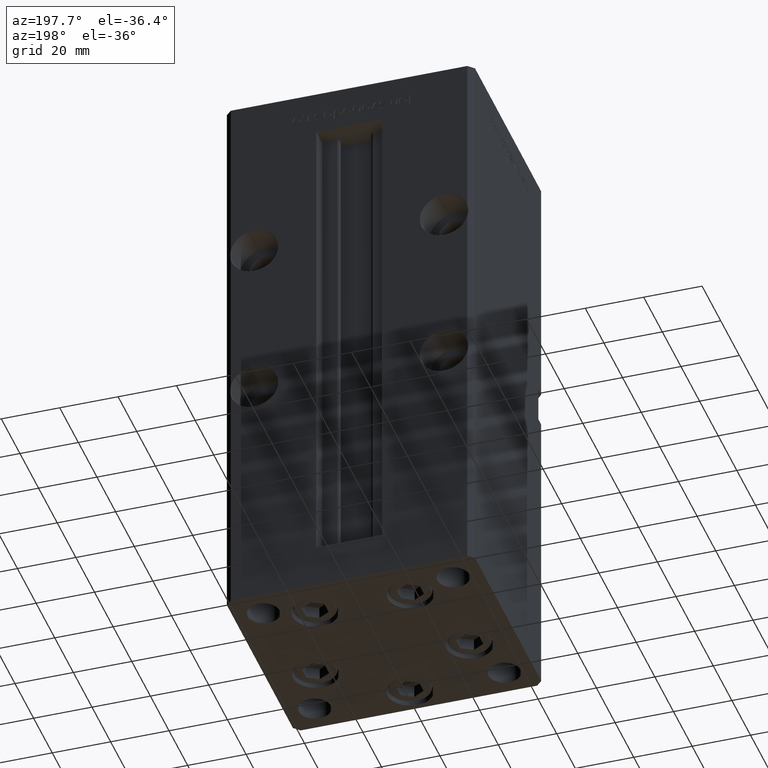
[diagram: clean part render]
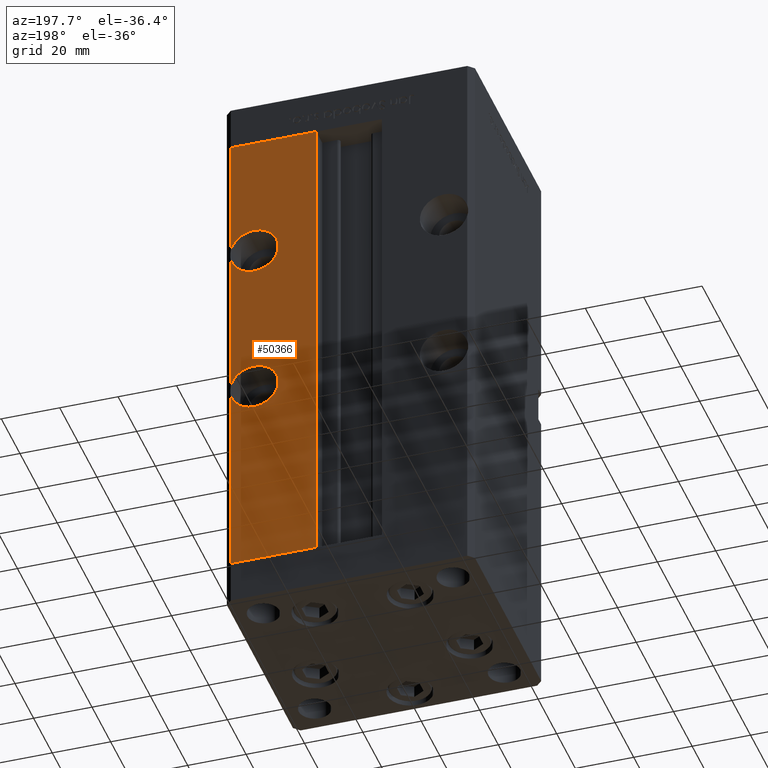
[diagram: same view with one face highlighted and labeled with its STEP entity id]
A machine part, auxiliary view. The second image highlights one B-rep face of the part: STEP entity #50366.
In plain terms, the highlighted planar face has unit normal (0, -1, 0).
Its self-contained STEP definition (entity closure, byte-faithful):
#68 = DIRECTION ( 'NONE',  ( -0.000000000000000000, -0.000000000000000000, -1.000000000000000000 ) ) ;
#146 = CARTESIAN_POINT ( 'NONE',  ( 40.50000000000000711, 37.50000000000000000, 122.9844355629253556 ) ) ;
#424 = CARTESIAN_POINT ( 'NONE',  ( 32.50000000000000000, 37.50000000000000000, 78.25000000000002842 ) ) ;
#492 = EDGE_CURVE ( 'NONE', #6066, #37689, #36009, .T. ) ;
#1006 = ORIENTED_EDGE ( 'NONE', *, *, #45909, .T. ) ;
#1206 = AXIS2_PLACEMENT_3D ( 'NONE', #20088, #27600, #12278 ) ;
#1716 = CIRCLE ( 'NONE', #15455, 8.250000000000007105 ) ;
#1915 = DIRECTION ( 'NONE',  ( 0.000000000000000000, 1.000000000000000000, -0.000000000000000000 ) ) ;
#2028 = EDGE_CURVE ( 'NONE', #33073, #47016, #1716, .T. ) ;
#2384 = EDGE_LOOP ( 'NONE', ( #27722, #16819, #6814, #15240, #18536, #35925, #11317, #44827, #1006, #30676, #18482, #17749 ) ) ;
#2979 = DIRECTION ( 'NONE',  ( 0.000000000000000000, 1.000000000000000000, -0.000000000000000000 ) ) ;
#3067 = AXIS2_PLACEMENT_3D ( 'NONE', #47096, #1915, #21832 ) ;
#3756 = CARTESIAN_POINT ( 'NONE',  ( 40.50000000000000711, 37.50000000000000000, 168.5000000000000000 ) ) ;
#3815 = CARTESIAN_POINT ( 'NONE',  ( 32.50000000000000000, 37.50000000000000000, 61.75000000000004263 ) ) ;
#4638 = EDGE_CURVE ( 'NONE', #39485, #19015, #52459, .T. ) ;
#5524 = CIRCLE ( 'NONE', #48505, 8.250000000000007105 ) ;
#5832 = EDGE_CURVE ( 'NONE', #17366, #27367, #22758, .T. ) ;
#6066 = VERTEX_POINT ( 'NONE', #14120 ) ;
#6775 = DIRECTION ( 'NONE',  ( 0.000000000000000000, 0.000000000000000000, 1.000000000000000000 ) ) ;
#6814 = ORIENTED_EDGE ( 'NONE', *, *, #27935, .F. ) ;
#6829 = VECTOR ( 'NONE', #8470, 1000.000000000000000 ) ;
#7046 = DIRECTION ( 'NONE',  ( 0.000000000000000000, 1.000000000000000000, 0.000000000000000000 ) ) ;
#8470 = DIRECTION ( 'NONE',  ( -1.000000000000000000, 0.000000000000000000, 0.000000000000000000 ) ) ;
#9055 = PLANE ( 'NONE',  #32508 ) ;
#10327 = VERTEX_POINT ( 'NONE', #146 ) ;
#10501 = DIRECTION ( 'NONE',  ( 0.000000000000000000, 1.000000000000000000, -0.000000000000000000 ) ) ;
#11317 = ORIENTED_EDGE ( 'NONE', *, *, #47562, .T. ) ;
#12278 = DIRECTION ( 'NONE',  ( 0.000000000000000000, 0.000000000000000000, 1.000000000000000000 ) ) ;
#13305 = CARTESIAN_POINT ( 'NONE',  ( -11.24999999999999822, 37.50000000000000000, 0.000000000000000000 ) ) ;
#14120 = CARTESIAN_POINT ( 'NONE',  ( 40.50000000000000711, 37.50000000000000000, 67.98443556292544088 ) ) ;
#15232 = DIRECTION ( 'NONE',  ( 1.000000000000000000, 0.000000000000000000, 0.000000000000000000 ) ) ;
#15240 = ORIENTED_EDGE ( 'NONE', *, *, #492, .F. ) ;
#15455 = AXIS2_PLACEMENT_3D ( 'NONE', #48203, #7046, #40385 ) ;
#15458 = DIRECTION ( 'NONE',  ( -0.000000000000000000, -0.000000000000000000, -1.000000000000000000 ) ) ;
#16819 = ORIENTED_EDGE ( 'NONE', *, *, #4638, .F. ) ;
#17366 = VERTEX_POINT ( 'NONE', #49367 ) ;
#17544 = CIRCLE ( 'NONE', #1206, 8.250000000000007105 ) ;
#17749 = ORIENTED_EDGE ( 'NONE', *, *, #24495, .F. ) ;
#17784 = DIRECTION ( 'NONE',  ( 0.000000000000000000, 0.000000000000000000, -1.000000000000000000 ) ) ;
#18336 = VECTOR ( 'NONE', #40326, 1000.000000000000000 ) ;
#18482 = ORIENTED_EDGE ( 'NONE', *, *, #2028, .F. ) ;
#18536 = ORIENTED_EDGE ( 'NONE', *, *, #30273, .T. ) ;
#18713 = CARTESIAN_POINT ( 'NONE',  ( 40.50000000000000711, 37.50000000000000000, 168.5000000000000000 ) ) ;
#19015 = VERTEX_POINT ( 'NONE', #34395 ) ;
#19388 = CARTESIAN_POINT ( 'NONE',  ( 40.50000000000000711, 37.50000000000000000, 168.5000000000000000 ) ) ;
#19408 = DIRECTION ( 'NONE',  ( 0.000000000000000000, 0.000000000000000000, -1.000000000000000000 ) ) ;
#19516 = LINE ( 'NONE', #18713, #28911 ) ;
#20088 = CARTESIAN_POINT ( 'NONE',  ( 32.50000000000000000, 37.50000000000000000, 125.0000000000000284 ) ) ;
#21437 = VECTOR ( 'NONE', #68, 1000.000000000000000 ) ;
#21832 = DIRECTION ( 'NONE',  ( 0.000000000000000000, 0.000000000000000000, -1.000000000000000000 ) ) ;
#22282 = VECTOR ( 'NONE', #15232, 1000.000000000000000 ) ;
#22288 = AXIS2_PLACEMENT_3D ( 'NONE', #38460, #10501, #17784 ) ;
#22758 = LINE ( 'NONE', #43195, #22282 ) ;
#23948 = CARTESIAN_POINT ( 'NONE',  ( 32.50000000000000000, 37.50000000000000000, 70.00000000000002842 ) ) ;
#24085 = CARTESIAN_POINT ( 'NONE',  ( 40.50000000000000711, 37.50000000000000000, 127.0155644370746728 ) ) ;
#24495 = EDGE_CURVE ( 'NONE', #10327, #33073, #5524, .T. ) ;
#26456 = VERTEX_POINT ( 'NONE', #39920 ) ;
#27367 = VERTEX_POINT ( 'NONE', #3756 ) ;
#27600 = DIRECTION ( 'NONE',  ( 0.000000000000000000, 1.000000000000000000, 0.000000000000000000 ) ) ;
#27722 = ORIENTED_EDGE ( 'NONE', *, *, #53043, .T. ) ;
#27935 = EDGE_CURVE ( 'NONE', #37689, #39485, #50313, .T. ) ;
#28911 = VECTOR ( 'NONE', #15458, 1000.000000000000000 ) ;
#29632 = LINE ( 'NONE', #50091, #21437 ) ;
#30273 = EDGE_CURVE ( 'NONE', #6066, #26456, #51905, .T. ) ;
#30676 = ORIENTED_EDGE ( 'NONE', *, *, #32306, .F. ) ;
#31339 = VERTEX_POINT ( 'NONE', #46719 ) ;
#32306 = EDGE_CURVE ( 'NONE', #47016, #49763, #17544, .T. ) ;
#32401 = VECTOR ( 'NONE', #51249, 1000.000000000000000 ) ;
#32508 = AXIS2_PLACEMENT_3D ( 'NONE', #45625, #42377, #34037 ) ;
#32679 = AXIS2_PLACEMENT_3D ( 'NONE', #23948, #2979, #19408 ) ;
#33073 = VERTEX_POINT ( 'NONE', #49727 ) ;
#34037 = DIRECTION ( 'NONE',  ( 0.000000000000000000, -0.000000000000000000, -1.000000000000000000 ) ) ;
#34395 = CARTESIAN_POINT ( 'NONE',  ( 40.50000000000000711, 37.50000000000000000, 72.01556443707463018 ) ) ;
#35925 = ORIENTED_EDGE ( 'NONE', *, *, #52801, .T. ) ;
#36009 = CIRCLE ( 'NONE', #22288, 8.249999999999992895 ) ;
#36960 = LINE ( 'NONE', #13305, #6829 ) ;
#37689 = VERTEX_POINT ( 'NONE', #3815 ) ;
#38460 = CARTESIAN_POINT ( 'NONE',  ( 32.50000000000000000, 37.50000000000000000, 70.00000000000002842 ) ) ;
#39485 = VERTEX_POINT ( 'NONE', #424 ) ;
#39920 = CARTESIAN_POINT ( 'NONE',  ( 40.50000000000000711, 37.50000000000000000, 0.000000000000000000 ) ) ;
#40326 = DIRECTION ( 'NONE',  ( -0.000000000000000000, -0.000000000000000000, -1.000000000000000000 ) ) ;
#40385 = DIRECTION ( 'NONE',  ( 0.000000000000000000, 0.000000000000000000, 1.000000000000000000 ) ) ;
#42377 = DIRECTION ( 'NONE',  ( 0.000000000000000000, -1.000000000000000000, 0.000000000000000000 ) ) ;
#43195 = CARTESIAN_POINT ( 'NONE',  ( -11.24999999999999822, 37.50000000000000000, 168.5000000000000000 ) ) ;
#44827 = ORIENTED_EDGE ( 'NONE', *, *, #5832, .T. ) ;
#45625 = CARTESIAN_POINT ( 'NONE',  ( -11.24999999999999822, 37.50000000000000000, 168.5000000000000000 ) ) ;
#45909 = EDGE_CURVE ( 'NONE', #27367, #49763, #19516, .T. ) ;
#46431 = FACE_OUTER_BOUND ( 'NONE', #2384, .T. ) ;
#46719 = CARTESIAN_POINT ( 'NONE',  ( 11.24999999999999822, 37.50000000000000000, 0.000000000000000000 ) ) ;
#47016 = VERTEX_POINT ( 'NONE', #49022 ) ;
#47096 = CARTESIAN_POINT ( 'NONE',  ( 32.50000000000000000, 37.50000000000000000, 70.00000000000002842 ) ) ;
#47400 = DIRECTION ( 'NONE',  ( 0.000000000000000000, 1.000000000000000000, 0.000000000000000000 ) ) ;
#47562 = EDGE_CURVE ( 'NONE', #31339, #17366, #47747, .T. ) ;
#47747 = LINE ( 'NONE', #51512, #32401 ) ;
#48203 = CARTESIAN_POINT ( 'NONE',  ( 32.50000000000000000, 37.50000000000000000, 125.0000000000000284 ) ) ;
#48505 = AXIS2_PLACEMENT_3D ( 'NONE', #51429, #47400, #6775 ) ;
#49022 = CARTESIAN_POINT ( 'NONE',  ( 32.50000000000000000, 37.50000000000000000, 133.2500000000000284 ) ) ;
#49367 = CARTESIAN_POINT ( 'NONE',  ( 11.24999999999999112, 37.50000000000000000, 168.5000000000000000 ) ) ;
#49727 = CARTESIAN_POINT ( 'NONE',  ( 32.50000000000000000, 37.50000000000000000, 116.7500000000000142 ) ) ;
#49763 = VERTEX_POINT ( 'NONE', #24085 ) ;
#50091 = CARTESIAN_POINT ( 'NONE',  ( 40.50000000000000711, 37.50000000000000000, 168.5000000000000000 ) ) ;
#50313 = CIRCLE ( 'NONE', #3067, 8.249999999999992895 ) ;
#50366 = ADVANCED_FACE ( 'NONE', ( #46431 ), #9055, .F. ) ;
#51249 = DIRECTION ( 'NONE',  ( -0.000000000000000000, -0.000000000000000000, 1.000000000000000000 ) ) ;
#51429 = CARTESIAN_POINT ( 'NONE',  ( 32.50000000000000000, 37.50000000000000000, 125.0000000000000284 ) ) ;
#51512 = CARTESIAN_POINT ( 'NONE',  ( 11.24999999999999822, 37.50000000000000000, 0.000000000000000000 ) ) ;
#51905 = LINE ( 'NONE', #19388, #18336 ) ;
#52459 = CIRCLE ( 'NONE', #32679, 8.249999999999992895 ) ;
#52801 = EDGE_CURVE ( 'NONE', #26456, #31339, #36960, .T. ) ;
#53043 = EDGE_CURVE ( 'NONE', #10327, #19015, #29632, .T. ) ;